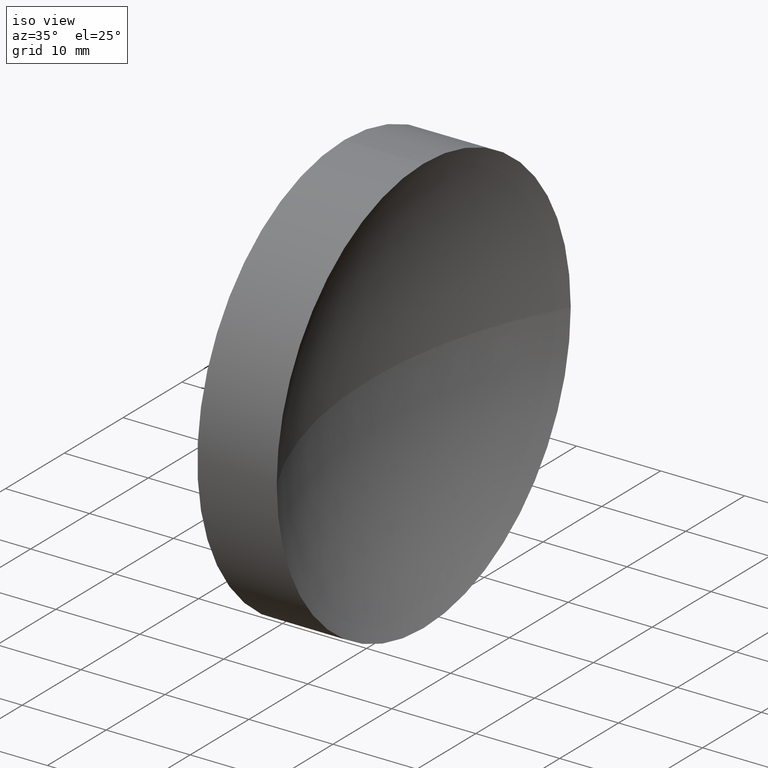
[diagram: clean part render]
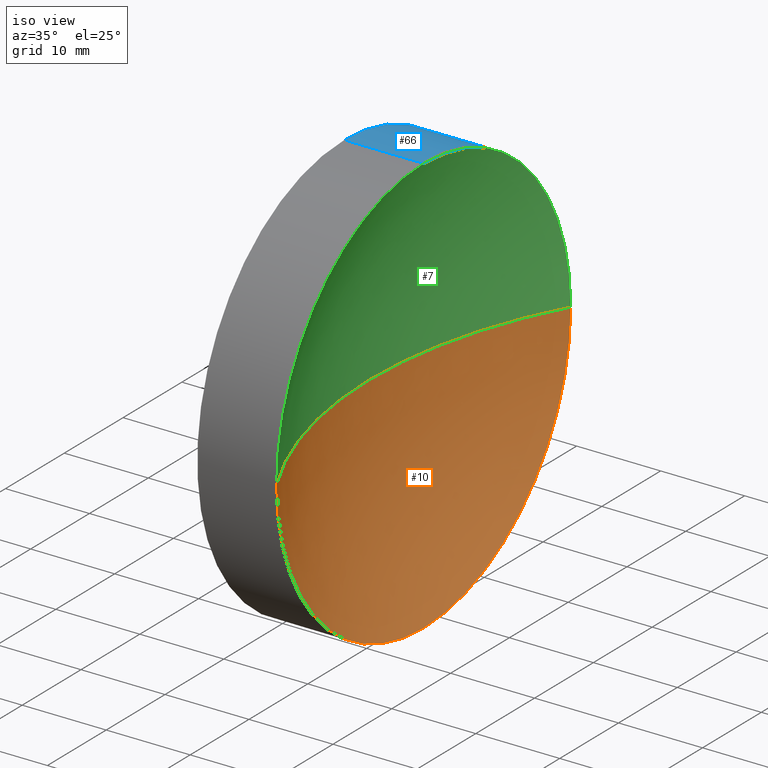
[diagram: same view with three faces highlighted in distinct colors, each labeled with its STEP entity id]
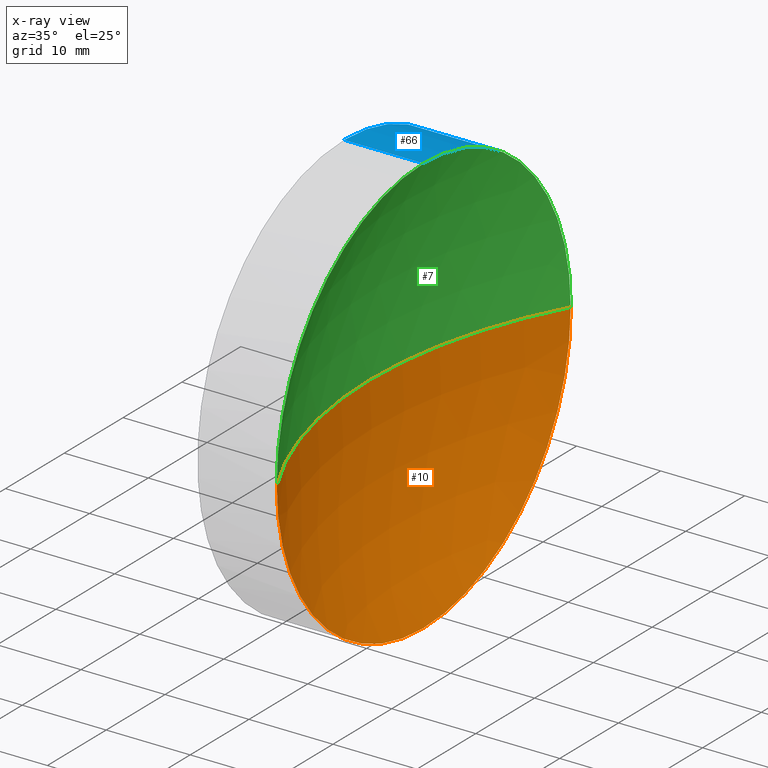
[diagram: x-ray of the same camera — body ghosted, the three highlighted faces saturated]
A machine part, iso view with three faces highlighted in distinct colors.
The next image is the same camera in x-ray (body ghosted, the three faces saturated) — at least one of them is partly hidden behind the body in this view.
Their STEP definitions:

[orange] entity #10 — the highlighted spherical surface has radius 51.64 mm.
#8 = AXIS2_PLACEMENT_3D ( 'NONE', #92, #180, #165 ) ;
#10 = ADVANCED_FACE ( 'NONE', ( #50 ), #136, .F. ) ;
#13 = CIRCLE ( 'NONE', #8, 51.64000000000002200 ) ;
#17 = DIRECTION ( 'NONE',  ( 0.0000000000000000000, 0.0000000000000000000, 1.000000000000000000 ) ) ;
#30 = AXIS2_PLACEMENT_3D ( 'NONE', #72, #155, #168 ) ;
#50 = FACE_OUTER_BOUND ( 'NONE', #94, .T. ) ;
#51 = EDGE_CURVE ( 'NONE', #184, #131, #114, .T. ) ;
#54 = CARTESIAN_POINT ( 'NONE',  ( 123.1943776569798400, 65.15563045701519200, 0.0000000000000000000 ) ) ;
#56 = CARTESIAN_POINT ( 'NONE',  ( 123.1943776569798400, 90.15563045701520700, 3.061616997868383800E-015 ) ) ;
#63 = VERTEX_POINT ( 'NONE', #56 ) ;
#70 = DIRECTION ( 'NONE',  ( -1.000000000000000000, -0.0000000000000000000, -0.0000000000000000000 ) ) ;
#72 = CARTESIAN_POINT ( 'NONE',  ( 168.3794371346435000, 65.15563045701519200, 0.0000000000000000000 ) ) ;
#73 = AXIS2_PLACEMENT_3D ( 'NONE', #54, #70, #17 ) ;
#77 = CARTESIAN_POINT ( 'NONE',  ( 168.3794371346435000, 65.15563045701519200, 0.0000000000000000000 ) ) ;
#82 = CARTESIAN_POINT ( 'NONE',  ( 116.7394371346434700, 65.15563045701519200, 0.0000000000000000000 ) ) ;
#83 = CARTESIAN_POINT ( 'NONE',  ( 123.1943776569798400, 65.15563045701519200, 0.0000000000000000000 ) ) ;
#85 = AXIS2_PLACEMENT_3D ( 'NONE', #77, #101, #130 ) ;
#88 = EDGE_CURVE ( 'NONE', #63, #184, #103, .T. ) ;
#92 = CARTESIAN_POINT ( 'NONE',  ( 168.3794371346435000, 65.15563045701519200, 0.0000000000000000000 ) ) ;
#94 = EDGE_LOOP ( 'NONE', ( #133, #178, #153, #105 ) ) ;
#101 = DIRECTION ( 'NONE',  ( 0.0000000000000000000, 0.0000000000000000000, 1.000000000000000000 ) ) ;
#103 = CIRCLE ( 'NONE', #135, 24.99999999999999300 ) ;
#105 = ORIENTED_EDGE ( 'NONE', *, *, #51, .F. ) ;
#108 = CARTESIAN_POINT ( 'NONE',  ( 123.1943776569798400, 65.15563045701519200, -24.99999999999999300 ) ) ;
#114 = CIRCLE ( 'NONE', #73, 24.99999999999999300 ) ;
#120 = EDGE_CURVE ( 'NONE', #131, #174, #143, .T. ) ;
#130 = DIRECTION ( 'NONE',  ( 0.0000000000000000000, -1.000000000000000000, 0.0000000000000000000 ) ) ;
#131 = VERTEX_POINT ( 'NONE', #154 ) ;
#133 = ORIENTED_EDGE ( 'NONE', *, *, #88, .F. ) ;
#135 = AXIS2_PLACEMENT_3D ( 'NONE', #83, #139, #150 ) ;
#136 = SPHERICAL_SURFACE ( 'NONE', #85, 51.64000000000002200 ) ;
#139 = DIRECTION ( 'NONE',  ( -1.000000000000000000, -0.0000000000000000000, -0.0000000000000000000 ) ) ;
#143 = CIRCLE ( 'NONE', #30, 51.64000000000002200 ) ;
#150 = DIRECTION ( 'NONE',  ( 0.0000000000000000000, 0.0000000000000000000, 1.000000000000000000 ) ) ;
#153 = ORIENTED_EDGE ( 'NONE', *, *, #120, .F. ) ;
#154 = CARTESIAN_POINT ( 'NONE',  ( 123.1943776569798400, 40.15563045701518500, 0.0000000000000000000 ) ) ;
#155 = DIRECTION ( 'NONE',  ( 0.0000000000000000000, 0.0000000000000000000, -1.000000000000000000 ) ) ;
#165 = DIRECTION ( 'NONE',  ( 0.0000000000000000000, -1.000000000000000000, -1.224646799147353200E-016 ) ) ;
#168 = DIRECTION ( 'NONE',  ( -1.000000000000000000, 0.0000000000000000000, 0.0000000000000000000 ) ) ;
#174 = VERTEX_POINT ( 'NONE', #82 ) ;
#178 = ORIENTED_EDGE ( 'NONE', *, *, #186, .T. ) ;
#180 = DIRECTION ( 'NONE',  ( 0.0000000000000000000, -1.224646799147353200E-016, 1.000000000000000000 ) ) ;
#184 = VERTEX_POINT ( 'NONE', #108 ) ;
#186 = EDGE_CURVE ( 'NONE', #63, #174, #13, .T. ) ;

[blue] entity #66 — the highlighted cylindrical surface (partial cylindrical patch) has radius 25 mm, axis along (-1, -0, -0).
#1 = CARTESIAN_POINT ( 'NONE',  ( 123.1943776569798400, 65.15563045701519200, 0.0000000000000000000 ) ) ;
#2 = EDGE_CURVE ( 'NONE', #184, #145, #147, .T. ) ;
#3 = ORIENTED_EDGE ( 'NONE', *, *, #128, .T. ) ;
#5 = LINE ( 'NONE', #47, #75 ) ;
#16 = DIRECTION ( 'NONE',  ( -1.000000000000000000, -0.0000000000000000000, -0.0000000000000000000 ) ) ;
#33 = DIRECTION ( 'NONE',  ( -1.000000000000000000, -0.0000000000000000000, -0.0000000000000000000 ) ) ;
#35 = EDGE_LOOP ( 'NONE', ( #74, #57, #65, #91, #3 ) ) ;
#41 = DIRECTION ( 'NONE',  ( -1.000000000000000000, -0.0000000000000000000, -0.0000000000000000000 ) ) ;
#43 = EDGE_CURVE ( 'NONE', #161, #160, #5, .T. ) ;
#44 = DIRECTION ( 'NONE',  ( 0.0000000000000000000, 0.0000000000000000000, 1.000000000000000000 ) ) ;
#47 = CARTESIAN_POINT ( 'NONE',  ( 105.6218371238301200, 65.15563045701519200, 24.99999999999999300 ) ) ;
#56 = CARTESIAN_POINT ( 'NONE',  ( 123.1943776569798400, 90.15563045701520700, 3.061616997868383800E-015 ) ) ;
#57 = ORIENTED_EDGE ( 'NONE', *, *, #2, .T. ) ;
#58 = AXIS2_PLACEMENT_3D ( 'NONE', #1, #16, #44 ) ;
#60 = CARTESIAN_POINT ( 'NONE',  ( 123.1943776569798400, 65.15563045701519200, 24.99999999999999300 ) ) ;
#62 = CARTESIAN_POINT ( 'NONE',  ( 105.6218371238301200, 65.15563045701519200, -24.99999999999999300 ) ) ;
#63 = VERTEX_POINT ( 'NONE', #56 ) ;
#65 = ORIENTED_EDGE ( 'NONE', *, *, #176, .F. ) ;
#66 = ADVANCED_FACE ( 'NONE', ( #173 ), #183, .T. ) ;
#68 = DIRECTION ( 'NONE',  ( 0.0000000000000000000, 0.0000000000000000000, 1.000000000000000000 ) ) ;
#74 = ORIENTED_EDGE ( 'NONE', *, *, #88, .T. ) ;
#75 = VECTOR ( 'NONE', #98, 1000.000000000000000 ) ;
#76 = AXIS2_PLACEMENT_3D ( 'NONE', #148, #41, #68 ) ;
#83 = CARTESIAN_POINT ( 'NONE',  ( 123.1943776569798400, 65.15563045701519200, 0.0000000000000000000 ) ) ;
#88 = EDGE_CURVE ( 'NONE', #63, #184, #103, .T. ) ;
#91 = ORIENTED_EDGE ( 'NONE', *, *, #43, .F. ) ;
#96 = AXIS2_PLACEMENT_3D ( 'NONE', #140, #33, #185 ) ;
#98 = DIRECTION ( 'NONE',  ( -1.000000000000000000, -0.0000000000000000000, -0.0000000000000000000 ) ) ;
#103 = CIRCLE ( 'NONE', #135, 24.99999999999999300 ) ;
#108 = CARTESIAN_POINT ( 'NONE',  ( 123.1943776569798400, 65.15563045701519200, -24.99999999999999300 ) ) ;
#119 = VECTOR ( 'NONE', #144, 1000.000000000000000 ) ;
#127 = CARTESIAN_POINT ( 'NONE',  ( 113.7394371346435000, 65.15563045701519200, -24.99999999999999300 ) ) ;
#128 = EDGE_CURVE ( 'NONE', #161, #63, #157, .T. ) ;
#135 = AXIS2_PLACEMENT_3D ( 'NONE', #83, #139, #150 ) ;
#139 = DIRECTION ( 'NONE',  ( -1.000000000000000000, -0.0000000000000000000, -0.0000000000000000000 ) ) ;
#140 = CARTESIAN_POINT ( 'NONE',  ( 105.6218371238301200, 65.15563045701519200, 0.0000000000000000000 ) ) ;
#144 = DIRECTION ( 'NONE',  ( -1.000000000000000000, -0.0000000000000000000, -0.0000000000000000000 ) ) ;
#145 = VERTEX_POINT ( 'NONE', #127 ) ;
#147 = LINE ( 'NONE', #62, #119 ) ;
#148 = CARTESIAN_POINT ( 'NONE',  ( 113.7394371346435000, 65.15563045701519200, 0.0000000000000000000 ) ) ;
#150 = DIRECTION ( 'NONE',  ( 0.0000000000000000000, 0.0000000000000000000, 1.000000000000000000 ) ) ;
#157 = CIRCLE ( 'NONE', #58, 24.99999999999999300 ) ;
#160 = VERTEX_POINT ( 'NONE', #167 ) ;
#161 = VERTEX_POINT ( 'NONE', #60 ) ;
#167 = CARTESIAN_POINT ( 'NONE',  ( 113.7394371346435000, 65.15563045701519200, 24.99999999999999300 ) ) ;
#173 = FACE_OUTER_BOUND ( 'NONE', #35, .T. ) ;
#175 = CIRCLE ( 'NONE', #76, 24.99999999999999300 ) ;
#176 = EDGE_CURVE ( 'NONE', #160, #145, #175, .T. ) ;
#183 = CYLINDRICAL_SURFACE ( 'NONE', #96, 24.99999999999999300 ) ;
#184 = VERTEX_POINT ( 'NONE', #108 ) ;
#185 = DIRECTION ( 'NONE',  ( 0.0000000000000000000, 0.0000000000000000000, 1.000000000000000000 ) ) ;

[green] entity #7 — the highlighted spherical surface has radius 51.64 mm.
#1 = CARTESIAN_POINT ( 'NONE',  ( 123.1943776569798400, 65.15563045701519200, 0.0000000000000000000 ) ) ;
#4 = DIRECTION ( 'NONE',  ( 0.0000000000000000000, -1.000000000000000000, 0.0000000000000000000 ) ) ;
#7 = ADVANCED_FACE ( 'NONE', ( #166 ), #55, .F. ) ;
#8 = AXIS2_PLACEMENT_3D ( 'NONE', #92, #180, #165 ) ;
#11 = EDGE_LOOP ( 'NONE', ( #121, #24, #169, #28 ) ) ;
#13 = CIRCLE ( 'NONE', #8, 51.64000000000002200 ) ;
#16 = DIRECTION ( 'NONE',  ( -1.000000000000000000, -0.0000000000000000000, -0.0000000000000000000 ) ) ;
#24 = ORIENTED_EDGE ( 'NONE', *, *, #128, .F. ) ;
#28 = ORIENTED_EDGE ( 'NONE', *, *, #120, .T. ) ;
#30 = AXIS2_PLACEMENT_3D ( 'NONE', #72, #155, #168 ) ;
#40 = AXIS2_PLACEMENT_3D ( 'NONE', #112, #95, #126 ) ;
#44 = DIRECTION ( 'NONE',  ( 0.0000000000000000000, 0.0000000000000000000, 1.000000000000000000 ) ) ;
#55 = SPHERICAL_SURFACE ( 'NONE', #141, 51.64000000000002200 ) ;
#56 = CARTESIAN_POINT ( 'NONE',  ( 123.1943776569798400, 90.15563045701520700, 3.061616997868383800E-015 ) ) ;
#58 = AXIS2_PLACEMENT_3D ( 'NONE', #1, #16, #44 ) ;
#60 = CARTESIAN_POINT ( 'NONE',  ( 123.1943776569798400, 65.15563045701519200, 24.99999999999999300 ) ) ;
#63 = VERTEX_POINT ( 'NONE', #56 ) ;
#72 = CARTESIAN_POINT ( 'NONE',  ( 168.3794371346435000, 65.15563045701519200, 0.0000000000000000000 ) ) ;
#82 = CARTESIAN_POINT ( 'NONE',  ( 116.7394371346434700, 65.15563045701519200, 0.0000000000000000000 ) ) ;
#86 = DIRECTION ( 'NONE',  ( 0.0000000000000000000, 0.0000000000000000000, 1.000000000000000000 ) ) ;
#92 = CARTESIAN_POINT ( 'NONE',  ( 168.3794371346435000, 65.15563045701519200, 0.0000000000000000000 ) ) ;
#95 = DIRECTION ( 'NONE',  ( -1.000000000000000000, -0.0000000000000000000, -0.0000000000000000000 ) ) ;
#112 = CARTESIAN_POINT ( 'NONE',  ( 123.1943776569798400, 65.15563045701519200, 0.0000000000000000000 ) ) ;
#120 = EDGE_CURVE ( 'NONE', #131, #174, #143, .T. ) ;
#121 = ORIENTED_EDGE ( 'NONE', *, *, #186, .F. ) ;
#123 = EDGE_CURVE ( 'NONE', #131, #161, #151, .T. ) ;
#126 = DIRECTION ( 'NONE',  ( 0.0000000000000000000, 0.0000000000000000000, 1.000000000000000000 ) ) ;
#128 = EDGE_CURVE ( 'NONE', #161, #63, #157, .T. ) ;
#131 = VERTEX_POINT ( 'NONE', #154 ) ;
#141 = AXIS2_PLACEMENT_3D ( 'NONE', #172, #86, #4 ) ;
#143 = CIRCLE ( 'NONE', #30, 51.64000000000002200 ) ;
#151 = CIRCLE ( 'NONE', #40, 24.99999999999999300 ) ;
#154 = CARTESIAN_POINT ( 'NONE',  ( 123.1943776569798400, 40.15563045701518500, 0.0000000000000000000 ) ) ;
#155 = DIRECTION ( 'NONE',  ( 0.0000000000000000000, 0.0000000000000000000, -1.000000000000000000 ) ) ;
#157 = CIRCLE ( 'NONE', #58, 24.99999999999999300 ) ;
#161 = VERTEX_POINT ( 'NONE', #60 ) ;
#165 = DIRECTION ( 'NONE',  ( 0.0000000000000000000, -1.000000000000000000, -1.224646799147353200E-016 ) ) ;
#166 = FACE_OUTER_BOUND ( 'NONE', #11, .T. ) ;
#168 = DIRECTION ( 'NONE',  ( -1.000000000000000000, 0.0000000000000000000, 0.0000000000000000000 ) ) ;
#169 = ORIENTED_EDGE ( 'NONE', *, *, #123, .F. ) ;
#172 = CARTESIAN_POINT ( 'NONE',  ( 168.3794371346435000, 65.15563045701519200, 0.0000000000000000000 ) ) ;
#174 = VERTEX_POINT ( 'NONE', #82 ) ;
#180 = DIRECTION ( 'NONE',  ( 0.0000000000000000000, -1.224646799147353200E-016, 1.000000000000000000 ) ) ;
#186 = EDGE_CURVE ( 'NONE', #63, #174, #13, .T. ) ;